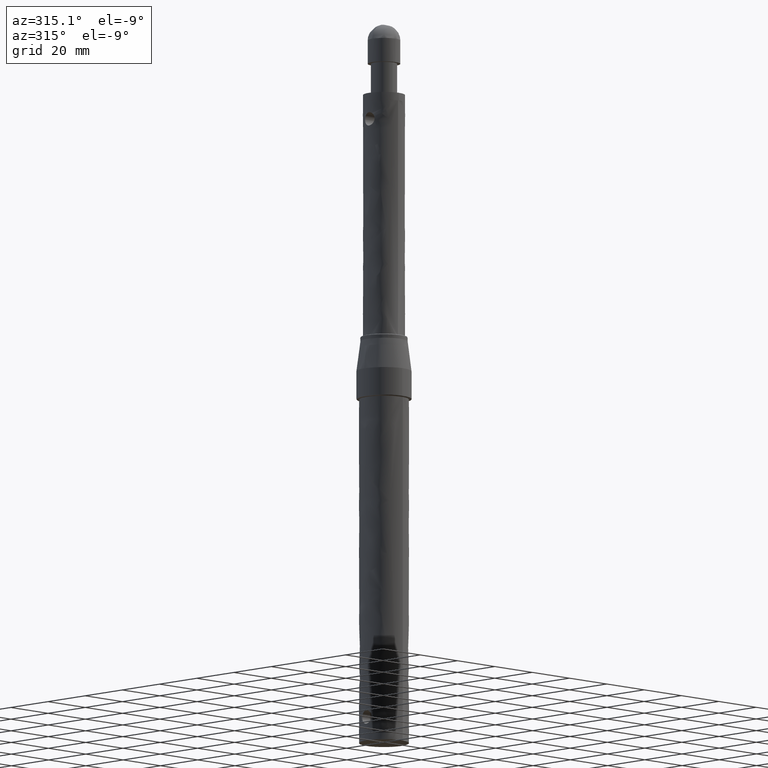
[diagram: clean part render]
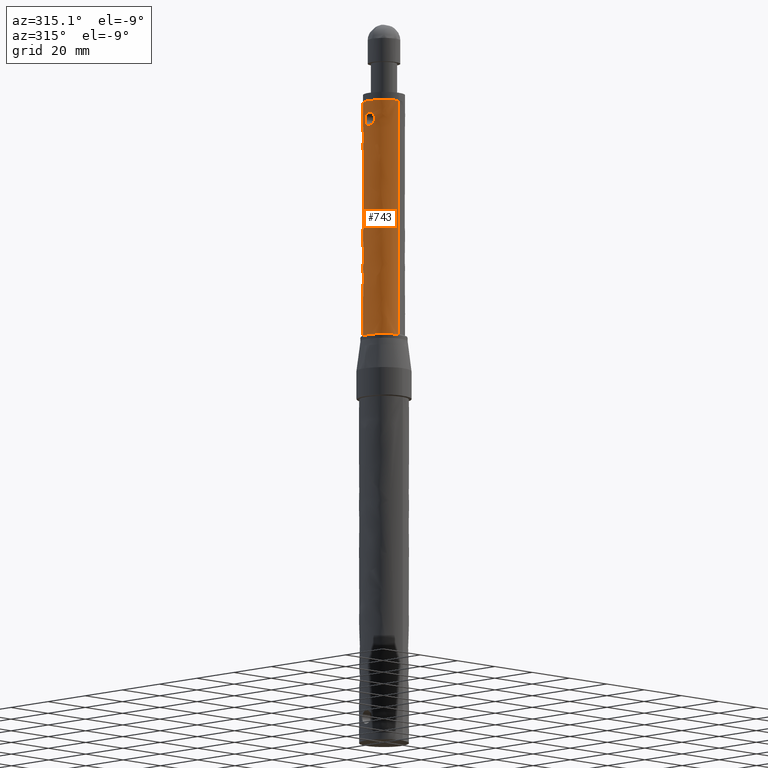
[diagram: same view with one face highlighted and labeled with its STEP entity id]
A machine part, auxiliary view. The second image highlights one B-rep face of the part: STEP entity #743.
In plain terms, the highlighted face is a freeform B-spline surface patch.
Its self-contained STEP definition (entity closure, byte-faithful):
#267=CARTESIAN_POINT('',(-7.582743371299326,2.549902851813572,83.022252665114252));
#268=VERTEX_POINT('',#267);
#269=CARTESIAN_POINT('',(-7.999999934522245,0.001055043696518,85.549999816570917));
#270=VERTEX_POINT('',#269);
#271=CARTESIAN_POINT('',(-7.582743371299326,2.549902851813572,83.022252665114252));
#272=CARTESIAN_POINT('',(-7.582966674788226,2.549240272901011,83.098109354885054));
#273=CARTESIAN_POINT('',(-7.584331496875745,2.545187428027642,83.174334397908410));
#274=CARTESIAN_POINT('',(-7.589634448742269,2.529333158995150,83.334887752641620));
#275=CARTESIAN_POINT('',(-7.593782910553564,2.516894772140060,83.418011040857351));
#276=CARTESIAN_POINT('',(-7.609968451619840,2.467705852188205,83.664000891667357));
#277=CARTESIAN_POINT('',(-7.625747884821227,2.419197320629656,83.823517194871087));
#278=CARTESIAN_POINT('',(-7.650556020023489,2.338648522609289,84.017342384215937));
#279=CARTESIAN_POINT('',(-7.655777571933915,2.321512754300346,84.055855688826824));
#280=CARTESIAN_POINT('',(-7.666574809999523,2.285603284463133,84.131490310187360));
#281=CARTESIAN_POINT('',(-7.672163319778041,2.266788427641645,84.168717327313104));
#282=CARTESIAN_POINT('',(-7.689424990935893,2.207809301519128,84.278670181084678));
#283=CARTESIAN_POINT('',(-7.713762561803373,2.122424714695685,84.420674096510055));
#284=CARTESIAN_POINT('',(-7.739998287436926,2.023706975816022,84.553712954237184));
#285=CARTESIAN_POINT('',(-7.766820974861826,1.918190642809870,84.682248052513529));
#286=CARTESIAN_POINT('',(-7.780579245886776,1.861779410042639,84.744471041239478));
#287=CARTESIAN_POINT('',(-7.821349094832241,1.685539053900525,84.920693861424766));
#288=CARTESIAN_POINT('',(-7.848073017756708,1.557989955353500,85.025502955289397));
#289=CARTESIAN_POINT('',(-7.885338794396009,1.351416970168468,85.164034642832092));
#290=CARTESIAN_POINT('',(-7.897310136924711,1.279880308313326,85.207137706165696));
#291=CARTESIAN_POINT('',(-7.919872316089118,1.131911431617370,85.286553510916406));
#292=CARTESIAN_POINT('',(-7.930307156053284,1.056510675347355,85.322327056259070));
#293=CARTESIAN_POINT('',(-7.958733146588113,0.826142961383910,85.418193285146245));
#294=CARTESIAN_POINT('',(-7.973852998476203,0.667049871939725,85.466945638067713));
#295=CARTESIAN_POINT('',(-7.989407147674281,0.419756147355624,85.516619529528256));
#296=CARTESIAN_POINT('',(-7.993396647905422,0.335585184708812,85.529219645944664));
#297=CARTESIAN_POINT('',(-7.998668639661191,0.168247965829329,85.545832290961073));
#298=CARTESIAN_POINT('',(-7.999988917006323,0.084627725687876,85.549965273811537));
#299=CARTESIAN_POINT('',(-7.999999934522245,0.001055043696518,85.549999816570917));
#300=B_SPLINE_CURVE_WITH_KNOTS('',3,(#271,#272,#273,#274,#275,#276,#277,#278,#279,#280,#281,#282,#283,#284,#285,#286,#287,#288,#289,#290,#291,#292,#293,#294,#295,#296,#297,#298,#299),.UNSPECIFIED.,.F.,.U.,(4,2,2,2,2,2,1,2,2,2,2,2,2,2,4),(0.251491452828384,0.265625000000014,0.281250000000014,0.312500000000011,0.320312500000010,0.328125000000010,0.343750000000008,0.359375000000007,0.375000000000006,0.406250000000003,0.421875000000002,0.437500000000002,0.468750000000001,0.484375000000002,0.500000000000002),.UNSPECIFIED.);
#301=EDGE_CURVE('',#268,#270,#300,.T.);
#384=CARTESIAN_POINT('',(-7.582743274499324,-2.549903351923200,82.977747330861149));
#385=VERTEX_POINT('',#384);
#391=CARTESIAN_POINT('',(-7.999999934522245,0.001055043696518,85.549999816570917));
#392=CARTESIAN_POINT('',(-8.000010952037560,-0.082517630265536,85.550034359399859));
#393=CARTESIAN_POINT('',(-7.998712709723642,-0.166042745751833,85.545970462140517));
#394=CARTESIAN_POINT('',(-7.994805335041413,-0.291258376727739,85.533658913821284));
#395=CARTESIAN_POINT('',(-7.993176149043646,-0.332984893582224,85.528517258332116));
#396=CARTESIAN_POINT('',(-7.989264275727751,-0.416413507867235,85.516123654319614));
#397=CARTESIAN_POINT('',(-7.986973528545525,-0.458227285795323,85.508845904747915));
#398=CARTESIAN_POINT('',(-7.974029519822649,-0.665092492494070,85.467515512491403));
#399=CARTESIAN_POINT('',(-7.958898059742086,-0.824598084003688,85.418735997642443));
#400=CARTESIAN_POINT('',(-7.930465412952707,-1.055330855300435,85.322867418726773));
#401=CARTESIAN_POINT('',(-7.920029931415023,-1.130810498839412,85.287098990653163));
#402=CARTESIAN_POINT('',(-7.897475906488435,-1.278859147194009,85.207730366851507));
#403=CARTESIAN_POINT('',(-7.885512301637710,-1.350406981649421,85.164666644851337));
#404=CARTESIAN_POINT('',(-7.848241082273471,-1.557153198792176,85.026153440622039));
#405=CARTESIAN_POINT('',(-7.821490513933456,-1.684900141092808,84.921280574464731));
#406=CARTESIAN_POINT('',(-7.780646291704144,-1.861502933694488,84.744773056511093));
#407=CARTESIAN_POINT('',(-7.766895559534739,-1.917886037924391,84.682587732218877));
#408=CARTESIAN_POINT('',(-7.740118232657536,-2.023245683842818,84.554305343053343));
#409=CARTESIAN_POINT('',(-7.713919556747345,-2.121851131012408,84.421509871693871));
#410=CARTESIAN_POINT('',(-7.689600826012201,-2.207196359710496,84.279721569273690));
#411=CARTESIAN_POINT('',(-7.672346302720746,-2.266168629813008,84.169916408026552));
#412=CARTESIAN_POINT('',(-7.666759016350793,-2.284984988636589,84.132736281879971));
#413=CARTESIAN_POINT('',(-7.655961938498287,-2.320904336812522,84.057190083660856));
#414=CARTESIAN_POINT('',(-7.650738146756265,-2.338052514668107,84.018711796362652));
#415=CARTESIAN_POINT('',(-7.625883883160032,-2.418772130160659,83.824789333601942));
#416=CARTESIAN_POINT('',(-7.610104256402264,-2.467287132064143,83.665442172366369));
#417=CARTESIAN_POINT('',(-7.593903004706153,-2.516532082854340,83.420142202039415));
#418=CARTESIAN_POINT('',(-7.589746524675330,-2.528996575809322,83.337321985264509));
#419=CARTESIAN_POINT('',(-7.585542344682422,-2.541567368348629,83.211450035460004));
#420=CARTESIAN_POINT('',(-7.584478000997166,-2.544738922461635,83.169087062124845));
#421=CARTESIAN_POINT('',(-7.583064934461595,-2.548946623201046,83.084603112343558));
#422=CARTESIAN_POINT('',(-7.582713143155174,-2.549991986546895,83.042474469106523));
#423=CARTESIAN_POINT('',(-7.582710154449810,-2.550000869497041,82.992883523211859));
#424=CARTESIAN_POINT('',(-7.582721053920193,-2.549968813440439,82.985313636688119));
#425=CARTESIAN_POINT('',(-7.582743274499324,-2.549903351923200,82.977747330861149));
#426=B_SPLINE_CURVE_WITH_KNOTS('',3,(#391,#392,#393,#394,#395,#396,#397,#398,#399,#400,#401,#402,#403,#404,#405,#406,#407,#408,#409,#410,#411,#412,#413,#414,#415,#416,#417,#418,#419,#420,#421,#422,#423,#424,#425),.UNSPECIFIED.,.F.,.U.,(4,2,2,2,2,2,2,2,2,1,2,2,2,2,2,2,2,4),(0.500000000000002,0.515625000000002,0.523437500000002,0.531250000000002,0.562500000000002,0.578125000000002,0.593750000000003,0.625000000000003,0.640625000000002,0.656250000000001,0.671875000000000,0.679687500000000,0.687499999999999,0.718750000000000,0.734375000000000,0.742187499999999,0.749999999999998,0.751408169436035),.UNSPECIFIED.);
#427=EDGE_CURVE('',#270,#385,#426,.T.);
#450=CARTESIAN_POINT('',(-8.0,6.518766E-015,80.449999999999989));
#451=VERTEX_POINT('',#450);
#452=CARTESIAN_POINT('',(-8.0,6.518766E-015,80.449999999999989));
#453=CARTESIAN_POINT('',(-7.999999999999776,0.169655828590207,80.450000000014782));
#454=CARTESIAN_POINT('',(-7.994612872237440,0.336263843306382,80.466760672647439));
#455=CARTESIAN_POINT('',(-7.979234934039955,0.581839291961437,80.515863981069543));
#456=CARTESIAN_POINT('',(-7.972890952068290,0.662969858544660,80.536256086279323));
#457=CARTESIAN_POINT('',(-7.961637202546434,0.783557820797539,80.573005370960445));
#458=CARTESIAN_POINT('',(-7.957583427988801,0.823681368036022,80.586326797371953));
#459=CARTESIAN_POINT('',(-7.948991397367396,0.902840394270235,80.614806391282812));
#460=CARTESIAN_POINT('',(-7.944453565357253,0.941894769787362,80.629962553043427));
#461=CARTESIAN_POINT('',(-7.920656266691600,1.134608015226107,80.710227856883066));
#462=CARTESIAN_POINT('',(-7.898076484729286,1.280664805671824,80.788653276452663));
#463=CARTESIAN_POINT('',(-7.866948710451111,1.453392650656676,80.904319108724039));
#464=CARTESIAN_POINT('',(-7.860577932755623,1.487441494479331,80.928342520378848));
#465=CARTESIAN_POINT('',(-7.847584956683799,1.554534653980151,80.978201560913334));
#466=CARTESIAN_POINT('',(-7.840969153533274,1.587539366752127,81.004015903719775));
#467=CARTESIAN_POINT('',(-7.821022809436380,1.684017829124094,81.083357422052075));
#468=CARTESIAN_POINT('',(-7.807526321586138,1.745314453780490,81.139033504978428));
#469=CARTESIAN_POINT('',(-7.767001377334263,1.920429271839951,81.314257869343010));
#470=CARTESIAN_POINT('',(-7.739924231317065,2.025564715986934,81.441913051725976));
#471=CARTESIAN_POINT('',(-7.701532173167737,2.165349205987964,81.650639124712114));
#472=CARTESIAN_POINT('',(-7.689285471465317,2.208292968348132,81.722177958701323));
#473=CARTESIAN_POINT('',(-7.666332780033968,2.286703001602390,81.868462814656993));
#474=CARTESIAN_POINT('',(-7.644881511625445,2.357775300511379,82.018165907035822));
#475=CARTESIAN_POINT('',(-7.627067651585678,2.414228537644851,82.174764363183243));
#476=CARTESIAN_POINT('',(-7.611402553734933,2.463171040229153,82.334942311143266));
#477=CARTESIAN_POINT('',(-7.604623550533789,2.483948919548324,82.417280616502978));
#478=CARTESIAN_POINT('',(-7.588346069416221,2.533418559549034,82.664520926440915));
#479=CARTESIAN_POINT('',(-7.582749446475667,2.549884527175543,82.830708092695943));
#480=CARTESIAN_POINT('',(-7.582708954358282,2.550004936820117,83.006247102432084));
#481=CARTESIAN_POINT('',(-7.582719807036529,2.549972770773327,83.014247832841406));
#482=CARTESIAN_POINT('',(-7.582743371299326,2.549902851813572,83.022252665114252));
#483=B_SPLINE_CURVE_WITH_KNOTS('',3,(#452,#453,#454,#455,#456,#457,#458,#459,#460,#461,#462,#463,#464,#465,#466,#467,#468,#469,#470,#471,#472,#473,#474,#475,#476,#477,#478,#479,#480,#481,#482),.UNSPECIFIED.,.F.,.U.,(4,2,2,2,2,2,2,2,2,2,2,1,2,2,2,4),(0.0,0.031250000000002,0.046875000000004,0.054687500000004,0.062500000000004,0.093750000000004,0.101562500000004,0.109375000000003,0.125000000000004,0.156250000000006,0.171875000000007,0.187500000000009,0.203125000000010,0.218750000000011,0.250000000000014,0.251491452828384),.UNSPECIFIED.);
#484=EDGE_CURVE('',#451,#268,#483,.T.);
#486=CARTESIAN_POINT('',(-7.582743274499324,-2.549903351923200,82.977747330861149));
#487=CARTESIAN_POINT('',(-7.583214171497369,-2.548516123719780,82.817402694026939));
#488=CARTESIAN_POINT('',(-7.588769355461744,-2.532126570675276,82.658666140842087));
#489=CARTESIAN_POINT('',(-7.601776382705811,-2.492602730533556,82.460380314115184));
#490=CARTESIAN_POINT('',(-7.604800538764213,-2.483369435290362,82.419350013858477));
#491=CARTESIAN_POINT('',(-7.611486498945956,-2.462800910216423,82.337512343367123));
#492=CARTESIAN_POINT('',(-7.615145473675216,-2.451473609886492,82.296765017711238));
#493=CARTESIAN_POINT('',(-7.626906134333448,-2.414738553997175,82.176232669796207));
#494=CARTESIAN_POINT('',(-7.644746886229808,-2.358213499846409,82.019167571942717));
#495=CARTESIAN_POINT('',(-7.666235765912475,-2.287028992097928,81.869110659420059));
#496=CARTESIAN_POINT('',(-7.683479069071213,-2.228130714922521,81.759169402977548));
#497=CARTESIAN_POINT('',(-7.689414612348508,-2.207577947729790,81.722956641717019));
#498=CARTESIAN_POINT('',(-7.701621008185323,-2.164608831296399,81.651404874729820));
#499=CARTESIAN_POINT('',(-7.707907913024420,-2.142133736091117,81.615979856285378));
#500=CARTESIAN_POINT('',(-7.739872173518467,-2.025758905090146,81.442181280340975));
#501=CARTESIAN_POINT('',(-7.766947435664082,-1.920652745738797,81.314499518341734));
#502=CARTESIAN_POINT('',(-7.807505797190101,-1.745407566062815,81.139118053310099));
#503=CARTESIAN_POINT('',(-7.821019270194803,-1.684038425604464,81.083369650386672));
#504=CARTESIAN_POINT('',(-7.840998647990531,-1.587394637438810,81.003899511252015));
#505=CARTESIAN_POINT('',(-7.847623786029109,-1.554337370964534,80.978051295187029));
#506=CARTESIAN_POINT('',(-7.860597351806137,-1.487337580402383,80.928269272982405));
#507=CARTESIAN_POINT('',(-7.866958965497543,-1.453335792536687,80.904280940525027));
#508=CARTESIAN_POINT('',(-7.898043893262188,-1.280844556956327,80.788774635603787));
#509=CARTESIAN_POINT('',(-7.920599013989659,-1.134981137622658,80.710426836556138));
#510=CARTESIAN_POINT('',(-7.944380519332918,-0.942508582329776,80.630207474175293));
#511=CARTESIAN_POINT('',(-7.948915938839546,-0.903502302501450,80.615057901379203));
#512=CARTESIAN_POINT('',(-7.957504694226165,-0.824439255062284,80.586586407180064));
#513=CARTESIAN_POINT('',(-7.961565789980877,-0.784286123176788,80.573239507955805));
#514=CARTESIAN_POINT('',(-7.972846535552795,-0.663518454135050,80.536399277478836));
#515=CARTESIAN_POINT('',(-7.979203538825835,-0.582282417379233,80.515964647832604));
#516=CARTESIAN_POINT('',(-7.994609368453849,-0.336435730643297,80.466771027006686));
#517=CARTESIAN_POINT('',(-7.999999999998974,-0.169655812060935,80.450000000128327));
#518=CARTESIAN_POINT('',(-8.0,6.518766E-015,80.449999999999989));
#519=B_SPLINE_CURVE_WITH_KNOTS('',3,(#486,#487,#488,#489,#490,#491,#492,#493,#494,#495,#496,#497,#498,#499,#500,#501,#502,#503,#504,#505,#506,#507,#508,#509,#510,#511,#512,#513,#514,#515,#516,#517,#518),.UNSPECIFIED.,.F.,.U.,(4,2,2,2,1,2,2,2,2,2,2,2,2,2,2,2,4),(0.751408169436035,0.781249999999991,0.789062499999991,0.796874999999990,0.812499999999989,0.828124999999988,0.835937499999988,0.843749999999988,0.874999999999986,0.890624999999985,0.898437499999985,0.906249999999986,0.937499999999990,0.945312499999992,0.953124999999993,0.968749999999995,1.0),.UNSPECIFIED.);
#520=EDGE_CURVE('',#385,#451,#519,.T.);
#604=CARTESIAN_POINT('',(-0.488389013830933,-7.985078344710761,-3.552714E-015));
#605=VERTEX_POINT('',#604);
#623=CARTESIAN_POINT('',(-8.0,0.0,0.0));
#624=VERTEX_POINT('',#623);
#625=CARTESIAN_POINT('',(-8.0,0.0,0.0));
#626=CARTESIAN_POINT('',(-8.000000000000002,-7.525647876599386,0.0));
#627=CARTESIAN_POINT('',(-0.488389013830936,-7.985078344710793,0.0));
#635=(BOUNDED_CURVE()B_SPLINE_CURVE(2,(#625,#626,#627),.UNSPECIFIED.,.F.,.U.)B_SPLINE_CURVE_WITH_KNOTS((3,3),(0.500000000000000,0.739332947168807),.UNSPECIFIED.)CURVE()GEOMETRIC_REPRESENTATION_ITEM()RATIONAL_B_SPLINE_CURVE((1.0,0.719604010942472,0.976072009368551))REPRESENTATION_ITEM(''));
#636=EDGE_CURVE('',#624,#605,#635,.T.);
#638=CARTESIAN_POINT('',(0.488389013830932,7.985078344710761,-3.552714E-015));
#639=VERTEX_POINT('',#638);
#640=CARTESIAN_POINT('',(0.488389013830932,7.985078344710761,-3.552714E-015));
#641=CARTESIAN_POINT('',(0.244422456142686,8.0,0.0));
#642=CARTESIAN_POINT('',(0.0,8.0,0.0));
#643=CARTESIAN_POINT('',(-8.0,8.0,0.0));
#644=CARTESIAN_POINT('',(-8.0,0.0,0.0));
#652=(BOUNDED_CURVE()B_SPLINE_CURVE(2,(#640,#641,#642,#643,#644),.UNSPECIFIED.,.F.,.U.)B_SPLINE_CURVE_WITH_KNOTS((3,2,3),(0.239332947168808,0.250000000000000,0.500000000000000),.UNSPECIFIED.)CURVE()GEOMETRIC_REPRESENTATION_ITEM()RATIONAL_B_SPLINE_CURVE((0.976072009368551,0.987502770244076,1.0,0.707106781186548,1.0))REPRESENTATION_ITEM(''));
#653=EDGE_CURVE('',#639,#624,#652,.T.);
#671=CARTESIAN_POINT('',(-0.488388316278855,-7.985078387374934,92.239750000000015));
#672=CARTESIAN_POINT('',(-8.473466703653788,-7.496690071096078,92.239750000000015));
#673=CARTESIAN_POINT('',(-7.985078387374934,0.488388316278855,92.239750000000015));
#674=CARTESIAN_POINT('',(-7.496690071096078,8.473466703653788,92.239750000000015));
#675=CARTESIAN_POINT('',(0.488388316278855,7.985078387374934,92.239750000000015));
#676=CARTESIAN_POINT('',(-0.488388316278855,-7.985078387374934,-2.305993749999999));
#677=CARTESIAN_POINT('',(-8.473466703653788,-7.496690071096078,-2.305993749999999));
#678=CARTESIAN_POINT('',(-7.985078387374934,0.488388316278855,-2.305993749999999));
#679=CARTESIAN_POINT('',(-7.496690071096078,8.473466703653788,-2.305993749999999));
#680=CARTESIAN_POINT('',(0.488388316278855,7.985078387374934,-2.305993749999999));
#688=(BOUNDED_SURFACE()B_SPLINE_SURFACE(2,1,((#671,#676),(#672,#677),(#673,#678),(#674,#679),(#675,#680)),.UNSPECIFIED.,.F.,.F.,.U.)B_SPLINE_SURFACE_WITH_KNOTS((3,2,3),(2,2),(0.0,13.254833995939039,26.509667991878072),(0.0,94.545743750000014),.UNSPECIFIED.)GEOMETRIC_REPRESENTATION_ITEM()RATIONAL_B_SPLINE_SURFACE(((1.0,1.0),(0.707106781186548,0.707106781186548),(1.0,1.0),(0.707106781186548,0.707106781186548),(1.0,1.0)))REPRESENTATION_ITEM('')SURFACE());
#689=ORIENTED_EDGE('',*,*,#636,.T.);
#690=CARTESIAN_POINT('',(-0.488389013830933,-7.985078344710761,89.989999999999995));
#691=VERTEX_POINT('',#690);
#692=CARTESIAN_POINT('',(-0.488389013830933,-7.985078344710761,89.989999999999995));
#693=CARTESIAN_POINT('',(-0.488389013830933,-7.985078344710761,-3.552714E-015));
#694=QUASI_UNIFORM_CURVE('',1,(#692,#693),.UNSPECIFIED.,.F.,.U.);
#695=EDGE_CURVE('',#691,#605,#694,.T.);
#696=ORIENTED_EDGE('',*,*,#695,.F.);
#697=CARTESIAN_POINT('',(-8.0,0.0,89.989999999999995));
#698=VERTEX_POINT('',#697);
#699=CARTESIAN_POINT('',(-8.0,0.0,89.989999999999995));
#700=CARTESIAN_POINT('',(-8.000000000000002,-7.525647876599386,89.990000000000009));
#701=CARTESIAN_POINT('',(-0.488389013830936,-7.985078344710793,89.989999999999995));
#709=(BOUNDED_CURVE()B_SPLINE_CURVE(2,(#699,#700,#701),.UNSPECIFIED.,.F.,.U.)B_SPLINE_CURVE_WITH_KNOTS((3,3),(0.500000000000000,0.739332947168807),.UNSPECIFIED.)CURVE()GEOMETRIC_REPRESENTATION_ITEM()RATIONAL_B_SPLINE_CURVE((1.0,0.719604010942472,0.976072009368551))REPRESENTATION_ITEM(''));
#710=EDGE_CURVE('',#698,#691,#709,.T.);
#711=ORIENTED_EDGE('',*,*,#710,.F.);
#712=CARTESIAN_POINT('',(0.488389013830932,7.985078344710761,89.989999999999995));
#713=VERTEX_POINT('',#712);
#714=CARTESIAN_POINT('',(0.488389013830933,7.985078344710793,89.989999999999995));
#715=CARTESIAN_POINT('',(0.244422456142686,8.0,89.989999999999995));
#716=CARTESIAN_POINT('',(0.0,8.0,89.989999999999995));
#717=CARTESIAN_POINT('',(-8.0,8.0,89.990000000000009));
#718=CARTESIAN_POINT('',(-8.0,0.0,89.989999999999995));
#726=(BOUNDED_CURVE()B_SPLINE_CURVE(2,(#714,#715,#716,#717,#718),.UNSPECIFIED.,.F.,.U.)B_SPLINE_CURVE_WITH_KNOTS((3,2,3),(0.239332947168808,0.250000000000000,0.500000000000000),.UNSPECIFIED.)CURVE()GEOMETRIC_REPRESENTATION_ITEM()RATIONAL_B_SPLINE_CURVE((0.976072009368551,0.987502770244076,1.0,0.707106781186548,1.0))REPRESENTATION_ITEM(''));
#727=EDGE_CURVE('',#713,#698,#726,.T.);
#728=ORIENTED_EDGE('',*,*,#727,.F.);
#729=CARTESIAN_POINT('',(0.488389013830932,7.985078344710761,89.989999999999995));
#730=CARTESIAN_POINT('',(0.488389013830932,7.985078344710761,-3.552714E-015));
#731=QUASI_UNIFORM_CURVE('',1,(#729,#730),.UNSPECIFIED.,.F.,.U.);
#732=EDGE_CURVE('',#713,#639,#731,.T.);
#733=ORIENTED_EDGE('',*,*,#732,.T.);
#734=ORIENTED_EDGE('',*,*,#653,.T.);
#735=EDGE_LOOP('',(#689,#696,#711,#728,#733,#734));
#736=FACE_OUTER_BOUND('',#735,.T.);
#737=ORIENTED_EDGE('',*,*,#427,.T.);
#738=ORIENTED_EDGE('',*,*,#520,.T.);
#739=ORIENTED_EDGE('',*,*,#484,.T.);
#740=ORIENTED_EDGE('',*,*,#301,.T.);
#741=EDGE_LOOP('',(#737,#738,#739,#740));
#742=FACE_BOUND('',#741,.T.);
#743=ADVANCED_FACE('',(#736,#742),#688,.T.);